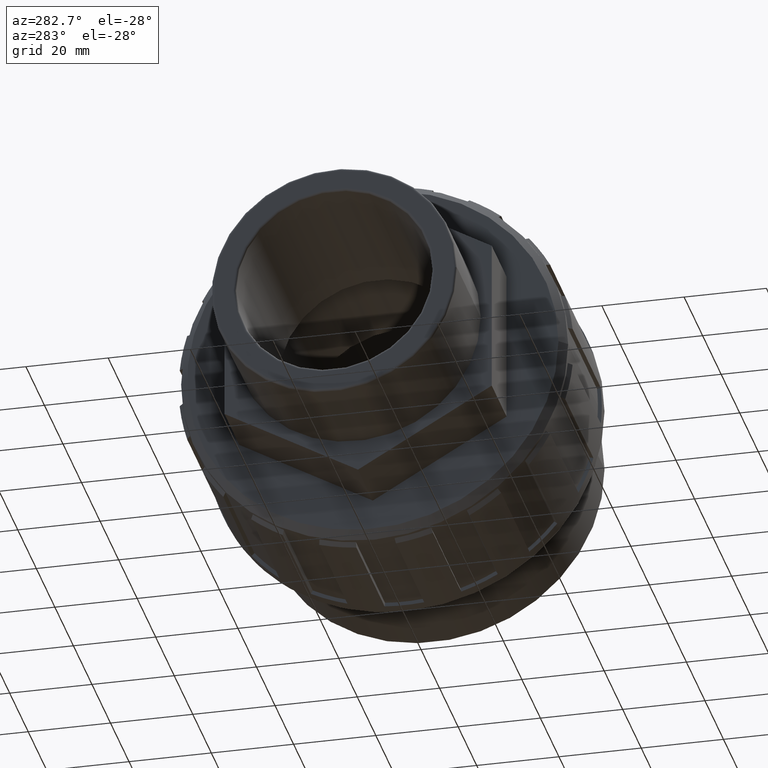
[diagram: clean part render]
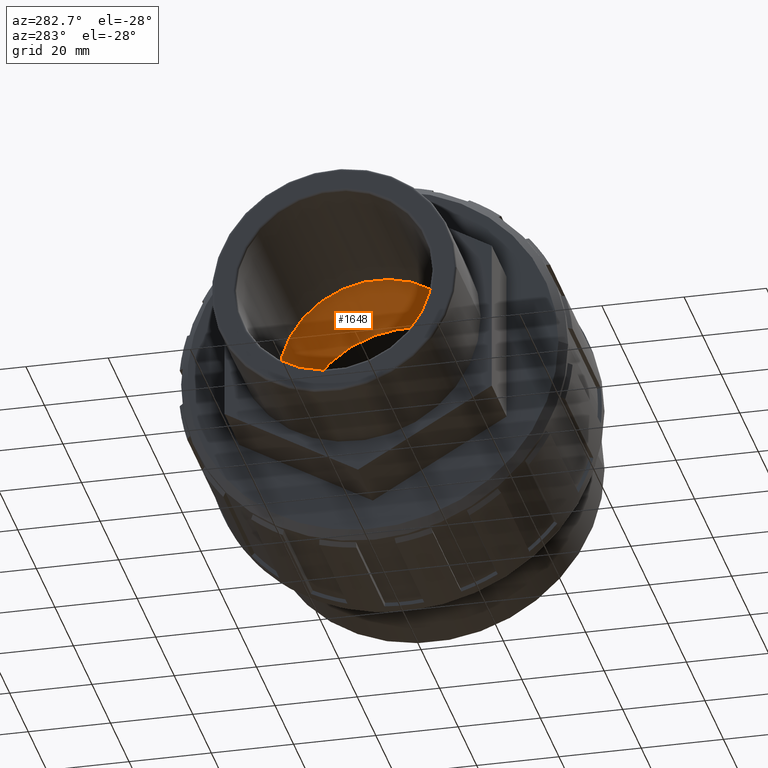
[diagram: same view with one face highlighted and labeled with its STEP entity id]
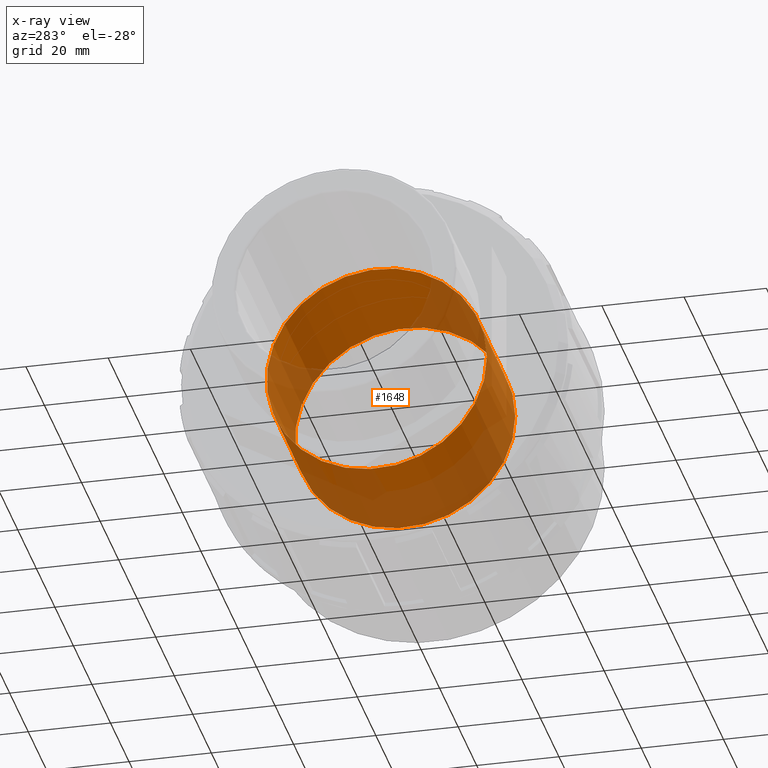
[diagram: x-ray of the same camera — body ghosted, the highlighted face saturated]
A machine part, auxiliary view. The second image highlights one B-rep face of the part: STEP entity #1648.
The next image is the same camera in x-ray: the body ghosted, the highlighted face saturated — about 56% of this face is hidden behind the body in this view.
In plain terms, the highlighted cylindrical surface (bore or boss wall) has radius 26.775 mm, axis along (-1, -0, 0).
Its self-contained STEP definition (entity closure, byte-faithful):
#54=FACE_BOUND('',#348,.T.);
#65=CYLINDRICAL_SURFACE('',#1823,26.775);
#147=CIRCLE('',#1822,26.775);
#148=CIRCLE('',#1824,26.775);
#238=FACE_OUTER_BOUND('',#347,.T.);
#347=EDGE_LOOP('',(#1484));
#348=EDGE_LOOP('',(#1485));
#805=VERTEX_POINT('',#2801);
#806=VERTEX_POINT('',#2804);
#1035=EDGE_CURVE('',#805,#805,#147,.T.);
#1036=EDGE_CURVE('',#806,#806,#148,.T.);
#1484=ORIENTED_EDGE('',*,*,#1035,.T.);
#1485=ORIENTED_EDGE('',*,*,#1036,.F.);
#1648=ADVANCED_FACE('',(#238,#54),#65,.F.);
#1822=AXIS2_PLACEMENT_3D('',#2802,#2313,#2314);
#1823=AXIS2_PLACEMENT_3D('',#2803,#2315,#2316);
#1824=AXIS2_PLACEMENT_3D('',#2805,#2317,#2318);
#2313=DIRECTION('center_axis',(-1.,-4.89858719658941E-16,0.));
#2314=DIRECTION('ref_axis',(0.,0.,1.));
#2315=DIRECTION('center_axis',(-1.,-4.89858719658941E-16,0.));
#2316=DIRECTION('ref_axis',(5.21458796415345E-16,-1.,0.));
#2317=DIRECTION('center_axis',(-1.,-4.89858719658941E-16,0.));
#2318=DIRECTION('ref_axis',(0.,0.,1.));
#2801=CARTESIAN_POINT('',(-7.79999999999998,-26.775,0.));
#2802=CARTESIAN_POINT('Origin',(-7.8,6.09874105975382E-15,0.));
#2803=CARTESIAN_POINT('Origin',(7.50000000000001,1.35935794705356E-14,0.));
#2804=CARTESIAN_POINT('',(22.8,-26.775,0.));
#2805=CARTESIAN_POINT('Origin',(22.8,2.10884178813174E-14,0.));